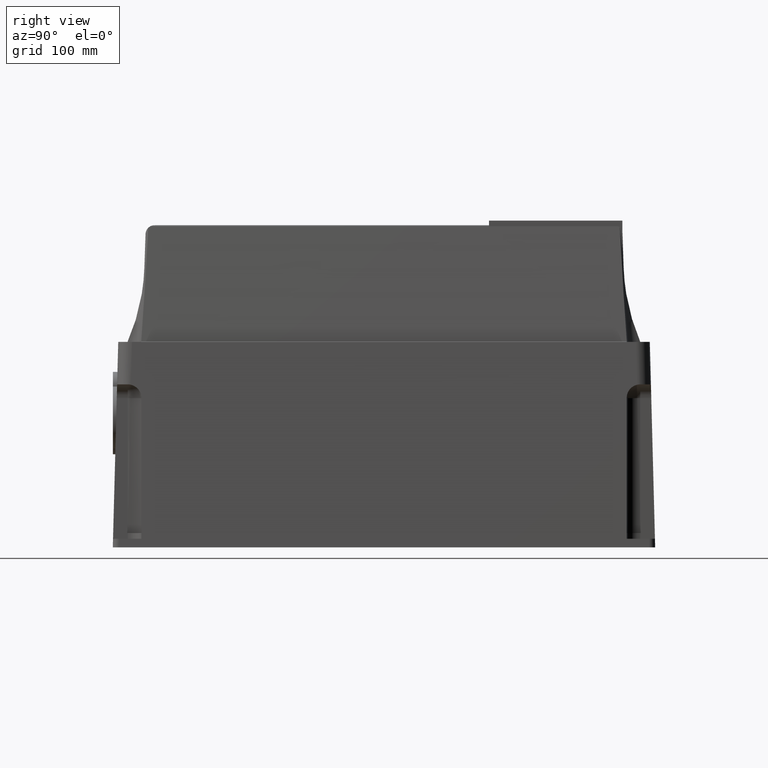
[diagram: clean part render]
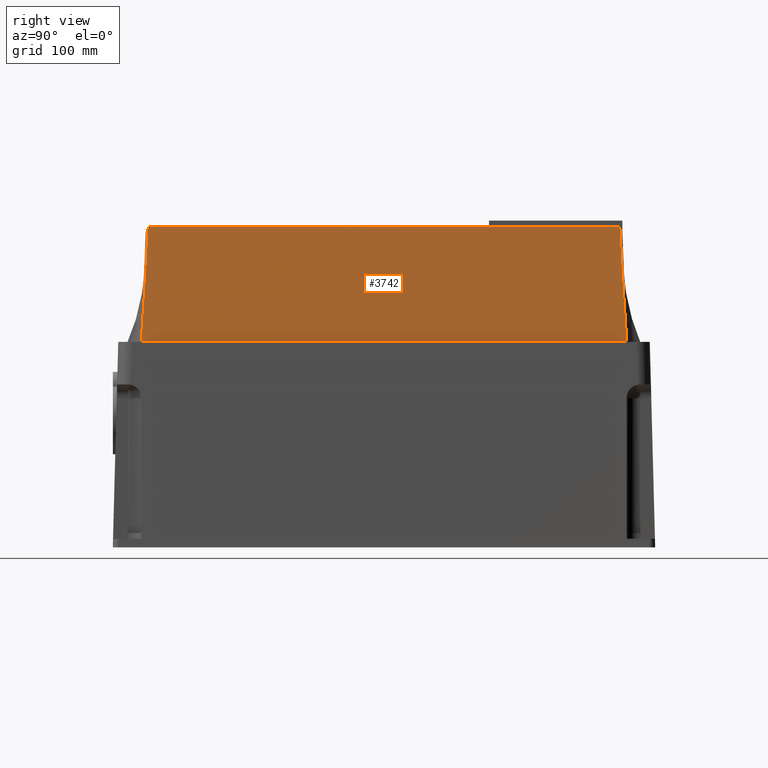
[diagram: same view with one face highlighted and labeled with its STEP entity id]
A machine part, right view. The second image highlights one B-rep face of the part: STEP entity #3742.
In plain terms, the highlighted planar face has unit normal (-0.9962, 0, -0.0872).
Its self-contained STEP definition (entity closure, byte-faithful):
#14 = VERTEX_POINT ( 'NONE', #3923 ) ;
#29 = CARTESIAN_POINT ( 'NONE',  ( 5.440225075877362038, 8.112790340388226440, 11.00787401574805280 ) ) ;
#64 = CARTESIAN_POINT ( 'NONE',  ( 5.575765406845807348, -8.193022466381782110, 9.458640943645159282 ) ) ;
#81 = ORIENTED_EDGE ( 'NONE', *, *, #3374, .F. ) ;
#107 = CARTESIAN_POINT ( 'NONE',  ( 5.575136904754971034, 8.192940925485476811, 9.465824755415814806 ) ) ;
#151 = VERTEX_POINT ( 'NONE', #724 ) ;
#238 = CARTESIAN_POINT ( 'NONE',  ( 5.436480437964863022, 3.612679231138350211, 11.05067542294282035 ) ) ;
#389 = CARTESIAN_POINT ( 'NONE',  ( 5.689427384945985544, 8.273091510582716523, 8.159478589124812942 ) ) ;
#445 = VERTEX_POINT ( 'NONE', #1805 ) ;
#578 = LINE ( 'NONE', #1457, #924 ) ;
#603 = VERTEX_POINT ( 'NONE', #3210 ) ;
#608 = DIRECTION ( 'NONE',  ( 0.000000000000000000, 1.000000000000000000, 0.000000000000000000 ) ) ;
#663 = DIRECTION ( 'NONE',  ( 0.000000000000000000, 1.000000000000000000, 0.000000000000000000 ) ) ;
#675 = VECTOR ( 'NONE', #663, 39.37007874015748143 ) ;
#699 = CARTESIAN_POINT ( 'NONE',  ( 5.436480437964863022, -8.036784660038478023, 11.05067542294282035 ) ) ;
#724 = CARTESIAN_POINT ( 'NONE',  ( 5.436480437964863022, 8.077905295573041045, 11.05067542294282035 ) ) ;
#773 = CARTESIAN_POINT ( 'NONE',  ( 5.441399889851618710, -8.113307848929807164, 10.99444583057628044 ) ) ;
#777 = CARTESIAN_POINT ( 'NONE',  ( 5.439427364288471622, -8.090745270264635636, 11.01699190093162173 ) ) ;
#821 = VERTEX_POINT ( 'NONE', #238 ) ;
#828 = CARTESIAN_POINT ( 'NONE',  ( 5.441647091322693086, -11.81102362204724443, 10.99162030483258334 ) ) ;
#830 = ORIENTED_EDGE ( 'NONE', *, *, #3074, .T. ) ;
#863 = LINE ( 'NONE', #1780, #2973 ) ;
#867 = DIRECTION ( 'NONE',  ( -0.9961946980917454342, 0.000000000000000000, -0.08715574274765941487 ) ) ;
#883 = ORIENTED_EDGE ( 'NONE', *, *, #3979, .F. ) ;
#906 = LINE ( 'NONE', #2255, #1490 ) ;
#924 = VECTOR ( 'NONE', #3631, 39.37007874015748143 ) ;
#987 = CARTESIAN_POINT ( 'NONE',  ( 5.783096516450408231, 8.353242095679943802, 7.088835516875043652 ) ) ;
#1012 = CARTESIAN_POINT ( 'NONE',  ( 5.783096516450408231, 8.353242095679943802, 7.088835516875043652 ) ) ;
#1021 = LINE ( 'NONE', #2486, #675 ) ;
#1032 = CARTESIAN_POINT ( 'NONE',  ( 5.436480437964863022, -8.036784660038478023, 11.05067542294282035 ) ) ;
#1068 =( BOUNDED_CURVE ( )  B_SPLINE_CURVE ( 3, ( #2298, #777, #3227, #699 ),
 .UNSPECIFIED., .F., .F. ) 
 B_SPLINE_CURVE_WITH_KNOTS ( ( 4, 4 ),
 ( 2.356560457904791406, 2.659215004611020117 ),
 .UNSPECIFIED. ) 
 CURVE ( )  GEOMETRIC_REPRESENTATION_ITEM ( )  RATIONAL_B_SPLINE_CURVE ( ( 1.000000000000000000, 0.9923812412044658027, 0.9923812412044658027, 1.000000000000000000 ) ) 
 REPRESENTATION_ITEM ( '' )  );
#1086 = EDGE_CURVE ( 'NONE', #2717, #821, #578, .T. ) ;
#1118 = B_SPLINE_CURVE_WITH_KNOTS ( 'NONE', 3,
 ( #1012, #389, #107, #29 ),
 .UNSPECIFIED., .F., .F.,
 ( 4, 4 ),
 ( 0.000000000000000000, 1.000000000000000000 ),
 .UNSPECIFIED. ) ;
#1119 = ORIENTED_EDGE ( 'NONE', *, *, #1414, .T. ) ;
#1120 = ORIENTED_EDGE ( 'NONE', *, *, #1086, .F. ) ;
#1141 = EDGE_CURVE ( 'NONE', #2880, #445, #1831, .T. ) ;
#1157 = DIRECTION ( 'NONE',  ( 0.08710305275880074471, 0.03476685441117756403, -0.9955924487632724640 ) ) ;
#1289 = EDGE_LOOP ( 'NONE', ( #1119, #81, #3225, #1999, #1120, #883, #1308, #2474, #830 ) ) ;
#1308 = ORIENTED_EDGE ( 'NONE', *, *, #1141, .T. ) ;
#1414 = EDGE_CURVE ( 'NONE', #2055, #14, #863, .T. ) ;
#1457 = CARTESIAN_POINT ( 'NONE',  ( 5.436480437964863022, -11.81102362204724443, 11.05067542294282035 ) ) ;
#1464 = DIRECTION ( 'NONE',  ( -0.08715574274765941487, 0.000000000000000000, 0.9961946980917454342 ) ) ;
#1490 = VECTOR ( 'NONE', #608, 39.37007874015748143 ) ;
#1763 = CARTESIAN_POINT ( 'NONE',  ( 5.440225075877362038, 8.112790340388226440, 11.00787401574805280 ) ) ;
#1780 = CARTESIAN_POINT ( 'NONE',  ( 5.440225075877362038, 8.899348643540102799, 11.00787401574805280 ) ) ;
#1805 = CARTESIAN_POINT ( 'NONE',  ( 5.783096516450408231, -8.352451701285659169, 7.088835516875043652 ) ) ;
#1831 = B_SPLINE_CURVE_WITH_KNOTS ( 'NONE', 3,
 ( #3427, #64, #2511, #1898 ),
 .UNSPECIFIED., .F., .F.,
 ( 4, 4 ),
 ( 0.000000000000000000, 1.000000000000000000 ),
 .UNSPECIFIED. ) ;
#1895 = VECTOR ( 'NONE', #1157, 39.37007874015748854 ) ;
#1898 = CARTESIAN_POINT ( 'NONE',  ( 5.783096516450408231, -8.352451701285659169, 7.088835516875043652 ) ) ;
#1999 = ORIENTED_EDGE ( 'NONE', *, *, #3864, .F. ) ;
#2055 = VERTEX_POINT ( 'NONE', #1763 ) ;
#2088 = DIRECTION ( 'NONE',  ( -0.000000000000000000, 1.000000000000000000, 0.000000000000000000 ) ) ;
#2255 = CARTESIAN_POINT ( 'NONE',  ( 5.436480437964863022, 8.200875323914679882, 11.05067542294282035 ) ) ;
#2298 = CARTESIAN_POINT ( 'NONE',  ( 5.441399889851618710, -8.113307848929807164, 10.99444583057628044 ) ) ;
#2306 = EDGE_CURVE ( 'NONE', #445, #3501, #1021, .T. ) ;
#2408 = CARTESIAN_POINT ( 'NONE',  ( 5.438976583611221827, 8.128740911016896220, 11.02214434764964324 ) ) ;
#2474 = ORIENTED_EDGE ( 'NONE', *, *, #2306, .T. ) ;
#2486 = CARTESIAN_POINT ( 'NONE',  ( 5.783096516450406455, -11.81102362204724443, 7.088835516875044540 ) ) ;
#2511 = CARTESIAN_POINT ( 'NONE',  ( 5.689664282378736893, -8.272737083833733962, 8.156770839078081536 ) ) ;
#2641 = FACE_OUTER_BOUND ( 'NONE', #1289, .T. ) ;
#2717 = VERTEX_POINT ( 'NONE', #1032 ) ;
#2726 = CARTESIAN_POINT ( 'NONE',  ( 5.438381859760844428, 8.104169435986115388, 11.02894207236515278 ) ) ;
#2880 = VERTEX_POINT ( 'NONE', #773 ) ;
#2973 = VECTOR ( 'NONE', #2088, 39.37007874015748143 ) ;
#2994 = CARTESIAN_POINT ( 'NONE',  ( 5.438502858091420755, 8.078712536925337417, 11.02755905511810752 ) ) ;
#3036 = EDGE_CURVE ( 'NONE', #151, #603, #3911, .T. ) ;
#3074 = EDGE_CURVE ( 'NONE', #3501, #2055, #1118, .T. ) ;
#3210 = CARTESIAN_POINT ( 'NONE',  ( 5.438502858091420755, 8.078712536925337417, 11.02755905511810752 ) ) ;
#3225 = ORIENTED_EDGE ( 'NONE', *, *, #3036, .F. ) ;
#3227 = CARTESIAN_POINT ( 'NONE',  ( 5.437774957705699741, -8.065041711419160819, 11.03587899459812860 ) ) ;
#3374 = EDGE_CURVE ( 'NONE', #603, #14, #3838, .T. ) ;
#3427 = CARTESIAN_POINT ( 'NONE',  ( 5.441399889851618710, -8.113307848929807164, 10.99444583057628044 ) ) ;
#3501 = VERTEX_POINT ( 'NONE', #987 ) ;
#3584 = PLANE ( 'NONE',  #3869 ) ;
#3631 = DIRECTION ( 'NONE',  ( 0.000000000000000000, 1.000000000000000000, 0.000000000000000000 ) ) ;
#3647 = CARTESIAN_POINT ( 'NONE',  ( 5.440225075877362038, 8.149867294377862947, 11.00787401574805280 ) ) ;
#3651 = CARTESIAN_POINT ( 'NONE',  ( 5.436480437964863022, 8.077905295573041045, 11.05067542294282035 ) ) ;
#3742 = ADVANCED_FACE ( 'NONE', ( #2641 ), #3584, .F. ) ;
#3838 =( BOUNDED_CURVE ( )  B_SPLINE_CURVE ( 3, ( #2994, #2726, #2408, #3647 ),
 .UNSPECIFIED., .F., .T. ) 
 B_SPLINE_CURVE_WITH_KNOTS ( ( 4, 4 ),
 ( 3.087318211701974402, 3.735668181968736956 ),
 .UNSPECIFIED. ) 
 CURVE ( )  GEOMETRIC_REPRESENTATION_ITEM ( )  RATIONAL_B_SPLINE_CURVE ( ( 1.000000000000000000, 0.9652758922475417336, 0.9652758922475417336, 1.000000000000000000 ) ) 
 REPRESENTATION_ITEM ( '' )  );
#3864 = EDGE_CURVE ( 'NONE', #821, #151, #906, .T. ) ;
#3869 = AXIS2_PLACEMENT_3D ( 'NONE', #828, #867, #1464 ) ;
#3911 = LINE ( 'NONE', #3651, #1895 ) ;
#3923 = CARTESIAN_POINT ( 'NONE',  ( 5.440225075877362038, 8.149867294377862947, 11.00787401574805280 ) ) ;
#3979 = EDGE_CURVE ( 'NONE', #2880, #2717, #1068, .T. ) ;